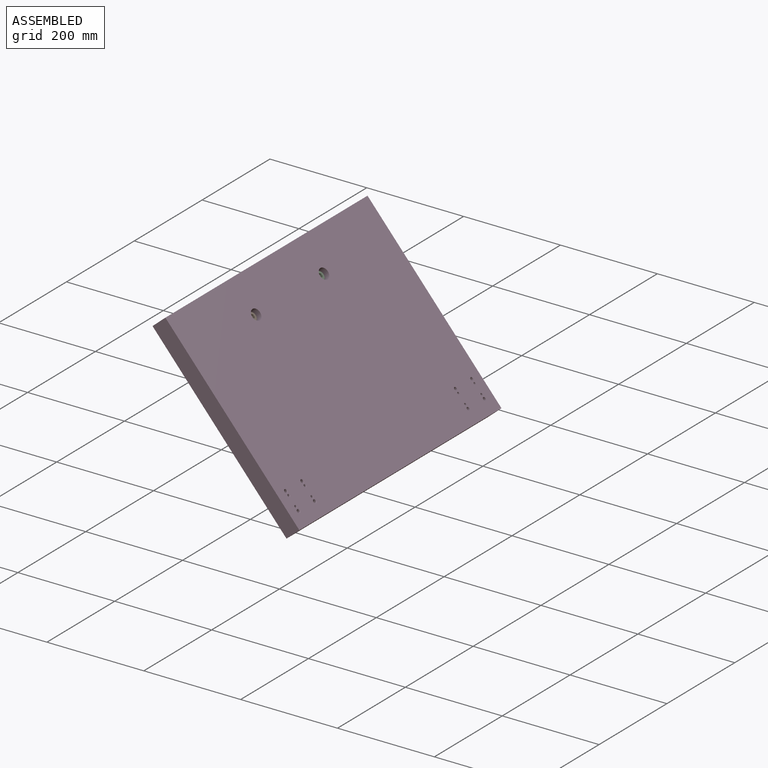
[diagram: assembled view]
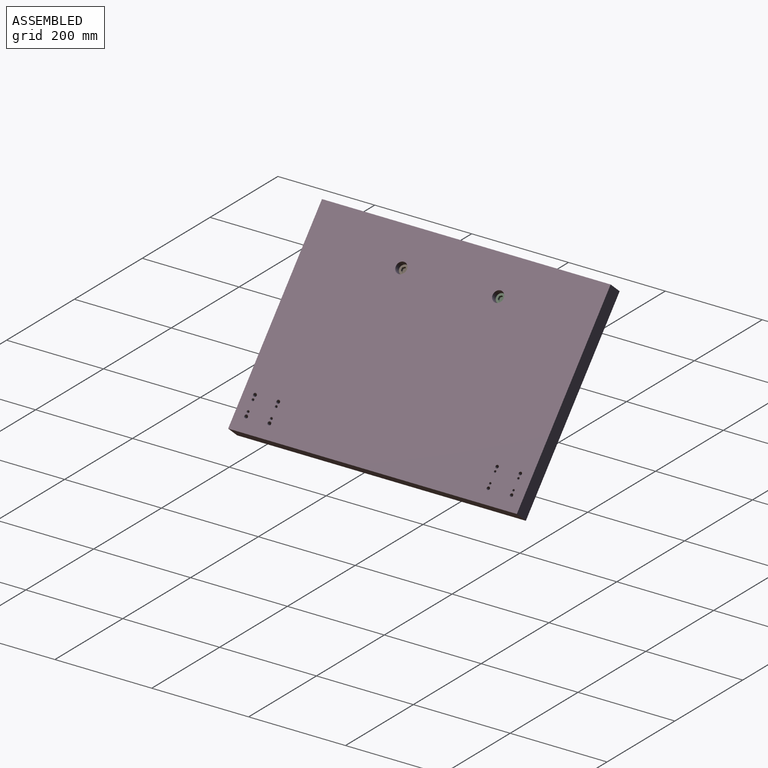
[diagram: assembled view, second angle]
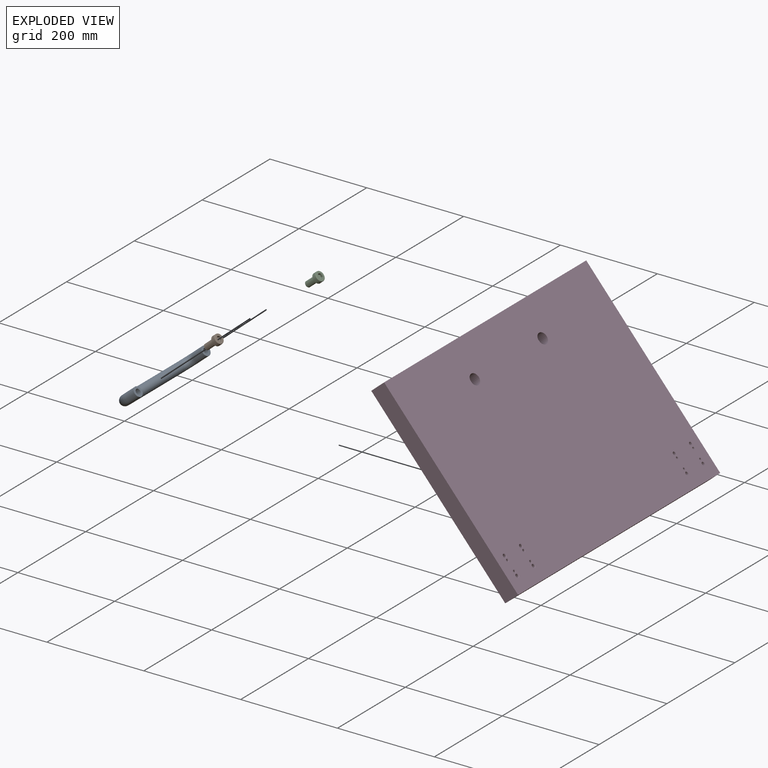
[diagram: exploded view]
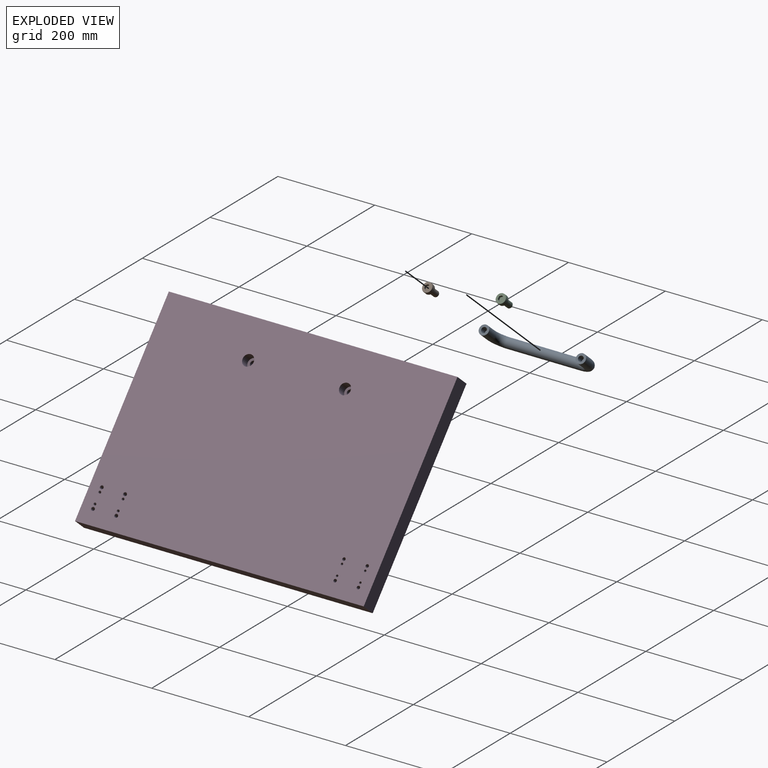
[diagram: exploded view, second angle]
ASSEMBLY  parts=4 mates=3
PART A: 11 faces, bbox 62.9x225.8x20 mm
  f0: plane 20x20mm, normal (1,0,0), area 219.1mm2, adj f2,f9
  f1: plane 20x20mm, normal (1,0,0), area 219.1mm2, adj f6,f7
  f2: cylinder r=10mm len=25mm, axis (-1,0,0), area 1570.8mm2, adj f0,f3
  f3: torus R=25mm, axis (0,0,-1), area 2467.4mm2, adj f2,f4
  f4: cylinder r=10mm len=150mm, axis (0,1,0), area 9424.8mm2, adj f3,f5
  f5: torus R=25mm, axis (0,0,-1), area 2467.4mm2, adj f4,f6
  f6: cylinder r=10mm len=25mm, axis (1,0,0), area 1570.8mm2, adj f1,f5
  f7: cylinder r=5.5mm len=15mm, axis (1,0,0), area 518.4mm2, adj f1,f8
  f8: plane 11x11mm, normal (1,0,0), area 95mm2, adj f7
  f9: cylinder r=5.5mm len=15mm, axis (1,0,0), area 518.4mm2, adj f0,f10
  f10: plane 11x11mm, normal (1,0,0), area 95mm2, adj f9
PART B: 34 faces, bbox 21.6x21.6x35 mm
  f0: cylinder r=6mm len=24mm, axis (0,0,1), area 904.8mm2, adj f6,f15
  f1: plane 10x10mm, normal (0,0,-1), area 78.5mm2, adj f15
  f2: plane 18x18mm, normal (0,0,1), area 168.2mm2, adj f7,f8,f9,f10,f11,f12,f14,f16
  f3: cylinder r=10mm len=20mm, axis (0,0,1), area 518.4mm2, adj f4,f14
  f4: plane 20x20mm, normal (0,0,-1), area 59.7mm2, adj f3,f5
  f5: cylinder r=9mm len=18mm, axis (0,0,1), area 42.4mm2, adj f4,f6
  f6: plane 18x18mm, normal (0,0,-1), area 141.4mm2, adj f0,f5
  f7: plane 4.62x4.25mm, normal (-1,0,0), area 19.6mm2, adj f2,f16,f21,f31
  f8: plane 4.25x4mm, normal (-0.5,-0.87,0), area 19.6mm2, adj f2,f16,f17,f32
  f9: plane 4.25x4mm, normal (0.5,-0.87,0), area 19.6mm2, adj f2,f17,f18,f28
  f10: plane 4.62x4.25mm, normal (1,0,0), area 19.6mm2, adj f2,f18,f19,f24
  f11: plane 4.25x4mm, normal (0.5,0.87,0), area 19.6mm2, adj f2,f19,f20,f23
  f12: plane 4.25x4mm, normal (-0.5,0.87,0), area 19.6mm2, adj f2,f20,f21,f27
  f13: plane 9.74x8.5mm, normal (0,0,1), area 62.6mm2, adj f22,f23,f24,f25,f26,f27,f28,f29
  f14: torus R=9mm, axis (0,0,-1), area 95.1mm2, adj f2,f3
  f15: cone r=6mm half-angle=45deg, axis (0,0,1), area 48.9mm2, adj f0,f1
  f16: cylinder r=1mm len=4.25mm, axis (0,0,-1), area 4.5mm2, adj f2,f7,f8,f33
  f17: cylinder r=1mm len=4.25mm, axis (0,0,-1), area 4.5mm2, adj f2,f8,f9,f30
  f18: cylinder r=1mm len=4.25mm, axis (0,0,-1), area 4.5mm2, adj f2,f9,f10,f26
  f19: cylinder r=1mm len=4.25mm, axis (0,0,-1), area 4.5mm2, adj f2,f10,f11,f22
  f20: cylinder r=1mm len=4.25mm, axis (0,0,-1), area 4.5mm2, adj f2,f11,f12,f25
  f21: cylinder r=1mm len=4.25mm, axis (0,0,-1), area 4.5mm2, adj f2,f7,f12,f29
  f22: torus R=0.25mm, axis (0,0,1), area 0.9mm2, adj f13,f19,f23,f24
  f23: cylinder r=0.75mm len=4.38mm, axis (0.87,-0.5,0), area 5.4mm2, adj f11,f13,f22,f25
  f24: cylinder r=0.75mm len=4.62mm, axis (0,-1,0), area 5.4mm2, adj f10,f13,f22,f26
  f25: torus R=0.25mm, axis (0,0,1), area 0.9mm2, adj f13,f20,f23,f27
  f26: torus R=0.25mm, axis (0,0,1), area 0.9mm2, adj f13,f18,f24,f28
  f27: cylinder r=0.75mm len=4.38mm, axis (0.87,0.5,0), area 5.4mm2, adj f12,f13,f25,f29
  f28: cylinder r=0.75mm len=4.38mm, axis (-0.87,-0.5,0), area 5.4mm2, adj f9,f13,f26,f30
  f29: torus R=0.25mm, axis (0,0,1), area 0.9mm2, adj f13,f21,f27,f31
  f30: torus R=0.25mm, axis (0,0,1), area 0.9mm2, adj f13,f17,f28,f32
  f31: cylinder r=0.75mm len=4.62mm, axis (0,1,0), area 5.4mm2, adj f7,f13,f29,f33
  f32: cylinder r=0.75mm len=4.38mm, axis (-0.87,0.5,0), area 5.4mm2, adj f8,f13,f30,f33
  f33: torus R=0.25mm, axis (0,0,1), area 0.9mm2, adj f13,f16,f31,f32
PART C: same geometry as B
PART D: 60 faces, bbox 35x596x425 mm
  f0: plane 596x425mm, normal (1,0,0), area 251958.5mm2, adj f1,f2,f4,f21,f22,f24,f26,f28
  f1: plane 596x35mm, normal (0,0,-1), area 20860mm2, adj f0,f3,f4,f21
  f2: plane 596x35mm, normal (0,0,1), area 20860mm2, adj f0,f3,f4,f21
  f3: plane 596x425mm, normal (-1,0,0), area 253034.5mm2, adj f1,f2,f4,f21,f54,f57
  f4: plane 425x35mm, normal (0,-1,0), area 14875mm2, adj f0,f1,f2,f3
  f5: cylinder r=3.25mm len=18.5mm, axis (-1,0,0), area 377.8mm2, adj f45,f52
  f6: plane 5x5mm, normal (1,0,0), area 19.6mm2, adj f52
  f7: cylinder r=3.25mm len=18.5mm, axis (-1,0,0), area 377.8mm2, adj f44,f49
  f8: plane 5x5mm, normal (1,0,0), area 19.6mm2, adj f49
  f9: cylinder r=2.25mm len=18.5mm, axis (-1,0,0), area 261.5mm2, adj f43,f50
  f10: plane 3x3mm, normal (1,0,0), area 7.1mm2, adj f50
  f11: cylinder r=3.25mm len=18.5mm, axis (-1,0,0), area 377.8mm2, adj f42,f51
  f12: plane 5x5mm, normal (1,0,0), area 19.6mm2, adj f51
  f13: cylinder r=2.25mm len=18.5mm, axis (-1,0,0), area 261.5mm2, adj f41,f53
  f14: plane 3x3mm, normal (1,0,0), area 7.1mm2, adj f53
  f15: cylinder r=2.25mm len=18.5mm, axis (-1,0,0), area 261.5mm2, adj f40,f47
  f16: plane 3x3mm, normal (1,0,0), area 7.1mm2, adj f47
  f17: cylinder r=3.25mm len=18.5mm, axis (-1,0,0), area 377.8mm2, adj f39,f46
  f18: plane 5x5mm, normal (1,0,0), area 19.6mm2, adj f46
  f19: cylinder r=2.25mm len=18.5mm, axis (-1,0,0), area 261.5mm2, adj f38,f48
  f20: plane 3x3mm, normal (1,0,0), area 7.1mm2, adj f48
  f21: plane 425x35mm, normal (0,1,0), area 14875mm2, adj f0,f1,f2,f3
  f22: cylinder r=3.25mm len=20mm, axis (-1,0,0), area 408.4mm2, adj f0,f23
  f23: plane 6.5x6.5mm, normal (1,0,0), area 33.2mm2, adj f22
  f24: cylinder r=3.25mm len=20mm, axis (-1,0,0), area 408.4mm2, adj f0,f25
  f25: plane 6.5x6.5mm, normal (1,0,0), area 33.2mm2, adj f24
  f26: cylinder r=2.25mm len=20mm, axis (-1,0,0), area 282.7mm2, adj f0,f27
  f27: plane 4.5x4.5mm, normal (1,0,0), area 15.9mm2, adj f26
  f28: cylinder r=3.25mm len=20mm, axis (-1,0,0), area 408.4mm2, adj f0,f29
  f29: plane 6.5x6.5mm, normal (1,0,0), area 33.2mm2, adj f28
  f30: cylinder r=2.25mm len=20mm, axis (-1,0,0), area 282.7mm2, adj f0,f31
  f31: plane 4.5x4.5mm, normal (1,0,0), area 15.9mm2, adj f30
  f32: cylinder r=2.25mm len=20mm, axis (-1,0,0), area 282.7mm2, adj f0,f33
  f33: plane 4.5x4.5mm, normal (1,0,0), area 15.9mm2, adj f32
  f34: cylinder r=3.25mm len=20mm, axis (-1,0,0), area 408.4mm2, adj f0,f35
  f35: plane 6.5x6.5mm, normal (1,0,0), area 33.2mm2, adj f34
  f36: cylinder r=2.25mm len=20mm, axis (-1,0,0), area 282.7mm2, adj f0,f37
  f37: plane 4.5x4.5mm, normal (1,0,0), area 15.9mm2, adj f36
  f38: cone r=3mm half-angle=45deg, axis (1,0,0), area 17.5mm2, adj f0,f19
  f39: cone r=4mm half-angle=45deg, axis (1,0,0), area 24.2mm2, adj f0,f17
  f40: cone r=3mm half-angle=45deg, axis (1,0,0), area 17.5mm2, adj f0,f15
  f41: cone r=3mm half-angle=45deg, axis (1,0,0), area 17.5mm2, adj f0,f13
  f42: cone r=4mm half-angle=45deg, axis (1,0,0), area 24.2mm2, adj f0,f11
  f43: cone r=3mm half-angle=45deg, axis (1,0,0), area 17.5mm2, adj f0,f9
  f44: cone r=4mm half-angle=45deg, axis (1,0,0), area 24.2mm2, adj f0,f7
  f45: cone r=4mm half-angle=45deg, axis (1,0,0), area 24.2mm2, adj f0,f5
  f46: cone r=3.25mm half-angle=45deg, axis (1,0,0), area 19.2mm2, adj f17,f18
  f47: cone r=2.25mm half-angle=45deg, axis (1,0,0), area 12.5mm2, adj f15,f16
  f48: cone r=1.5mm half-angle=45deg, axis (1,0,0), area 12.5mm2, adj f19,f20
  f49: cone r=2.5mm half-angle=45deg, axis (1,0,0), area 19.2mm2, adj f7,f8
  f50: cone r=1.5mm half-angle=45deg, axis (1,0,0), area 12.5mm2, adj f9,f10
  f51: cone r=2.5mm half-angle=45deg, axis (1,0,0), area 19.2mm2, adj f11,f12
  f52: cone r=3.25mm half-angle=45deg, axis (1,0,0), area 19.2mm2, adj f5,f6
  f53: cone r=2.25mm half-angle=45deg, axis (1,0,0), area 12.5mm2, adj f13,f14
  f54: cylinder r=6.5mm len=15mm, axis (1,0,0), area 612.6mm2, adj f3,f56
  f55: cylinder r=11.5mm len=23mm, axis (1,0,0), area 1445.1mm2, adj f0,f56
  f56: plane 23x23mm, normal (1,0,0), area 282.7mm2, adj f54,f55
  f57: cylinder r=6.5mm len=15mm, axis (1,0,0), area 612.6mm2, adj f3,f59
  f58: cylinder r=11.5mm len=23mm, axis (1,0,0), area 1445.1mm2, adj f0,f59
  f59: plane 23x23mm, normal (1,0,0), area 282.7mm2, adj f57,f58
PLACE A rot(axis=(0,-1,0),40.6deg) t=(-35.89,0,37.62)mm
PLACE B rot(axis=(0.39,0.39,0.84),100.1deg) t=(-308.23,150,255.12)mm
PLACE C rot(axis=(0.39,0.39,0.84),100.1deg) t=(-308.23,350,255.12)mm
PLACE D rot(axis=(0,-1,0),40.6deg) t=(-35.89,0,37.62)mm
MATE fastened C.f0 <-> D.f54  axis (-0.76,0,-0.65) through (-308.23,350,255.12)mm
MATE fastened B.f0 <-> D.f57  axis (-0.76,0,-0.65) through (-308.23,150,255.12)mm
MATE fastened A.f9 <-> D.f57  axis (0.76,0,0.65) through (-319.61,150,245.35)mm
